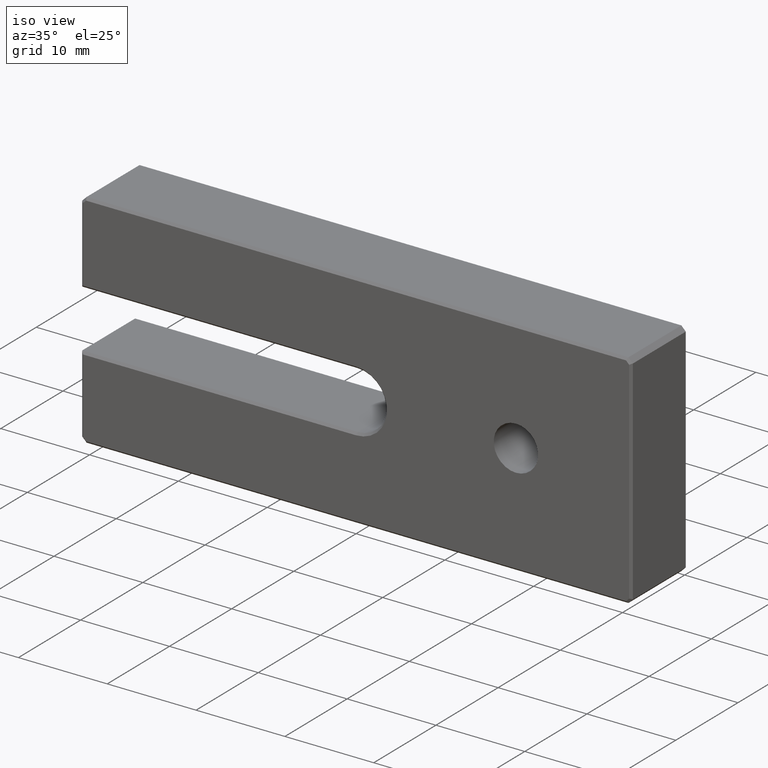
[diagram: clean part render]
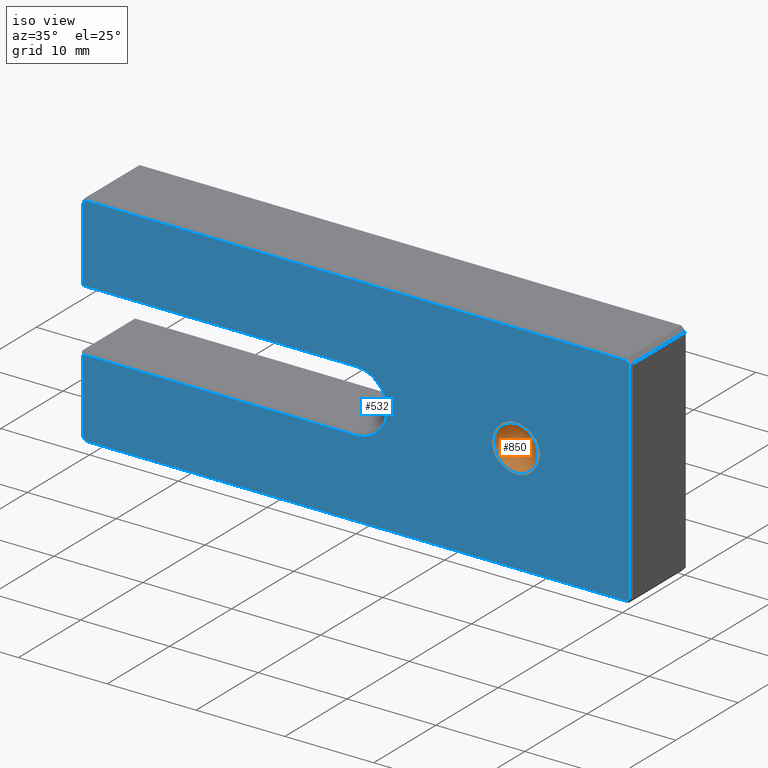
[diagram: same view with the hole feature highlighted: cylindrical wall and planar end face, labeled with their STEP entity ids]
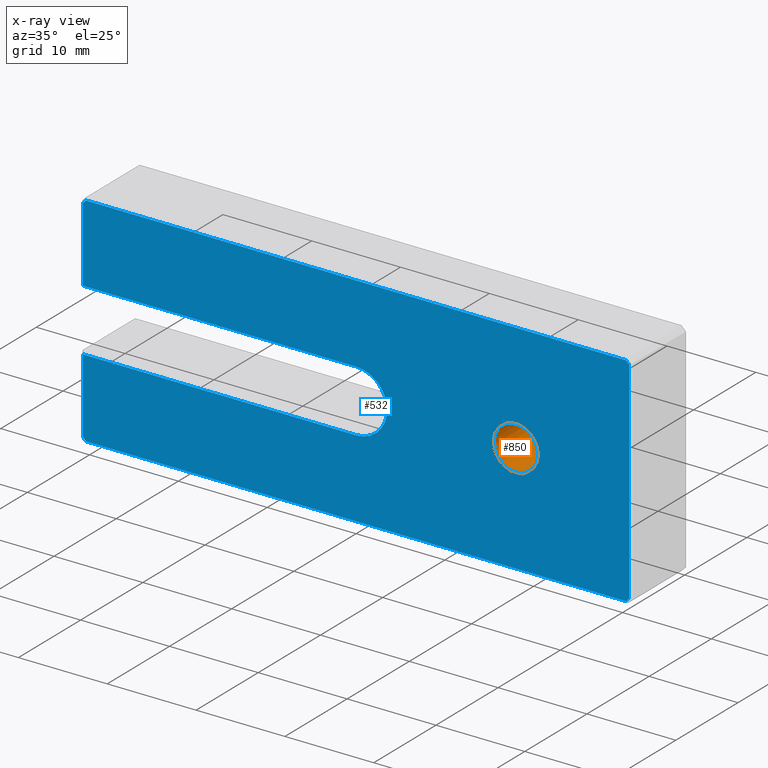
[diagram: x-ray of the same camera — body ghosted, the hole faces saturated]
A machine part, iso view. The highlighted faces form one hole feature of diameter 5 mm: the cylindrical wall (entity #850, orange) and its adjacent planar end face (entity #532, blue) — they share a circular edge in the B-rep.
The next image is the same camera in x-ray (body ghosted, the hole faces saturated) — the bore reads through the body.
Wall:
#25 = DIRECTION ( 'NONE',  ( -0.000000000000000000, 1.000000000000000000, -0.000000000000000000 ) ) ;
#105 = DIRECTION ( 'NONE',  ( 0.000000000000000000, 0.000000000000000000, 1.000000000000000000 ) ) ;
#139 = CIRCLE ( 'NONE', #1030, 2.499999999999998668 ) ;
#161 = FACE_OUTER_BOUND ( 'NONE', #501, .T. ) ;
#162 = EDGE_CURVE ( 'NONE', #374, #374, #139, .T. ) ;
#202 = AXIS2_PLACEMENT_3D ( 'NONE', #503, #325, #593 ) ;
#213 = CARTESIAN_POINT ( 'NONE',  ( 17.99999999999999645, 8.474999999999999645, 0.000000000000000000 ) ) ;
#282 = ORIENTED_EDGE ( 'NONE', *, *, #162, .F. ) ;
#292 = DIRECTION ( 'NONE',  ( -0.000000000000000000, 1.000000000000000000, -0.000000000000000000 ) ) ;
#325 = DIRECTION ( 'NONE',  ( -0.000000000000000000, 1.000000000000000000, -0.000000000000000000 ) ) ;
#374 = VERTEX_POINT ( 'NONE', #1074 ) ;
#501 = EDGE_LOOP ( 'NONE', ( #282 ) ) ;
#503 = CARTESIAN_POINT ( 'NONE',  ( 17.99999999999999645, 9.000000000000000000, 0.000000000000000000 ) ) ;
#543 = VERTEX_POINT ( 'NONE', #1095 ) ;
#593 = DIRECTION ( 'NONE',  ( 0.000000000000000000, 0.000000000000000000, 1.000000000000000000 ) ) ;
#608 = CARTESIAN_POINT ( 'NONE',  ( 17.99999999999999645, 0.000000000000000000, 0.000000000000000000 ) ) ;
#724 = CIRCLE ( 'NONE', #929, 2.499999999999998668 ) ;
#757 = EDGE_LOOP ( 'NONE', ( #813 ) ) ;
#813 = ORIENTED_EDGE ( 'NONE', *, *, #1133, .T. ) ;
#818 = DIRECTION ( 'NONE',  ( 0.000000000000000000, 0.000000000000000000, 1.000000000000000000 ) ) ;
#850 = ADVANCED_FACE ( 'NONE', ( #161, #860 ), #932, .F. ) ;
#860 = FACE_OUTER_BOUND ( 'NONE', #757, .T. ) ;
#929 = AXIS2_PLACEMENT_3D ( 'NONE', #213, #25, #818 ) ;
#932 = CYLINDRICAL_SURFACE ( 'NONE', #202, 2.499999999999998668 ) ;
#1030 = AXIS2_PLACEMENT_3D ( 'NONE', #608, #292, #105 ) ;
#1074 = CARTESIAN_POINT ( 'NONE',  ( 17.99999999999999645, 0.000000000000000000, 2.499999999999998668 ) ) ;
#1095 = CARTESIAN_POINT ( 'NONE',  ( 17.99999999999999645, 8.474999999999999645, 2.499999999999998668 ) ) ;
#1133 = EDGE_CURVE ( 'NONE', #543, #543, #724, .T. ) ;
End face:
#1 = DIRECTION ( 'NONE',  ( 0.000000000000000000, -0.000000000000000000, 1.000000000000000000 ) ) ;
#4 = LINE ( 'NONE', #271, #256 ) ;
#45 = CARTESIAN_POINT ( 'NONE',  ( -30.39644660940672338, 0.000000000000000000, 12.25000000000000178 ) ) ;
#55 = LINE ( 'NONE', #402, #534 ) ;
#64 = ORIENTED_EDGE ( 'NONE', *, *, #207, .T. ) ;
#94 = DIRECTION ( 'NONE',  ( -1.000000000000000000, 0.000000000000000000, 0.000000000000000000 ) ) ;
#105 = DIRECTION ( 'NONE',  ( 0.000000000000000000, 0.000000000000000000, 1.000000000000000000 ) ) ;
#139 = CIRCLE ( 'NONE', #1030, 2.499999999999998668 ) ;
#153 = CARTESIAN_POINT ( 'NONE',  ( -30.75000000000000711, 0.000000000000000000, 4.267419750902946241E-15 ) ) ;
#162 = EDGE_CURVE ( 'NONE', #374, #374, #139, .T. ) ;
#163 = CARTESIAN_POINT ( 'NONE',  ( -30.75000000000000711, 0.000000000000000000, -3.499999999999998224 ) ) ;
#173 = ORIENTED_EDGE ( 'NONE', *, *, #366, .T. ) ;
#177 = AXIS2_PLACEMENT_3D ( 'NONE', #364, #528, #1 ) ;
#178 = ORIENTED_EDGE ( 'NONE', *, *, #162, .T. ) ;
#191 = FACE_BOUND ( 'NONE', #369, .T. ) ;
#199 = CARTESIAN_POINT ( 'NONE',  ( 0.000000000000000000, 0.000000000000000000, 0.000000000000000000 ) ) ;
#207 = EDGE_CURVE ( 'NONE', #634, #652, #874, .T. ) ;
#212 = ORIENTED_EDGE ( 'NONE', *, *, #721, .T. ) ;
#214 = VECTOR ( 'NONE', #569, 999.9999999999998863 ) ;
#215 = VERTEX_POINT ( 'NONE', #701 ) ;
#226 = EDGE_LOOP ( 'NONE', ( #392, #173, #1076, #242, #713, #295, #64, #212, #1069, #381, #767, #305 ) ) ;
#242 = ORIENTED_EDGE ( 'NONE', *, *, #1085, .T. ) ;
#248 = VECTOR ( 'NONE', #754, 1000.000000000000000 ) ;
#256 = VECTOR ( 'NONE', #260, 1000.000000000000114 ) ;
#260 = DIRECTION ( 'NONE',  ( 0.7071067811865474617, 0.000000000000000000, 0.7071067811865474617 ) ) ;
#271 = CARTESIAN_POINT ( 'NONE',  ( 30.82322330470335814, 0.000000000000000000, -11.82322330470336702 ) ) ;
#279 = DIRECTION ( 'NONE',  ( 0.000000000000000000, 0.000000000000000000, 1.000000000000000000 ) ) ;
#287 = VERTEX_POINT ( 'NONE', #638 ) ;
#292 = DIRECTION ( 'NONE',  ( -0.000000000000000000, 1.000000000000000000, -0.000000000000000000 ) ) ;
#295 = ORIENTED_EDGE ( 'NONE', *, *, #418, .T. ) ;
#297 = CARTESIAN_POINT ( 'NONE',  ( -30.82322330470336524, 0.000000000000000000, 11.82322330470336347 ) ) ;
#298 = DIRECTION ( 'NONE',  ( 0.7071067811865524577, 0.000000000000000000, -0.7071067811865426878 ) ) ;
#305 = ORIENTED_EDGE ( 'NONE', *, *, #507, .T. ) ;
#314 = LINE ( 'NONE', #1078, #1079 ) ;
#324 = VECTOR ( 'NONE', #1026, 1000.000000000000000 ) ;
#338 = LINE ( 'NONE', #843, #248 ) ;
#363 = DIRECTION ( 'NONE',  ( 1.000000000000000000, 0.000000000000000000, -5.595882180570342961E-17 ) ) ;
#364 = CARTESIAN_POINT ( 'NONE',  ( 0.000000000000000000, 0.000000000000000000, 0.000000000000000000 ) ) ;
#366 = EDGE_CURVE ( 'NONE', #773, #812, #55, .T. ) ;
#368 = CARTESIAN_POINT ( 'NONE',  ( 30.39644660940672338, 0.000000000000000000, -12.24999999999999822 ) ) ;
#369 = EDGE_LOOP ( 'NONE', ( #178 ) ) ;
#374 = VERTEX_POINT ( 'NONE', #1074 ) ;
#376 = CARTESIAN_POINT ( 'NONE',  ( -30.75000000000000711, 0.000000000000000000, -11.89644660940673049 ) ) ;
#381 = ORIENTED_EDGE ( 'NONE', *, *, #1060, .T. ) ;
#392 = ORIENTED_EDGE ( 'NONE', *, *, #800, .T. ) ;
#402 = CARTESIAN_POINT ( 'NONE',  ( -30.32322330470336880, 0.000000000000000000, -12.32322330470336169 ) ) ;
#418 = EDGE_CURVE ( 'NONE', #734, #634, #338, .T. ) ;
#419 = DIRECTION ( 'NONE',  ( -1.000000000000000000, 0.000000000000000000, 5.595882180570342961E-17 ) ) ;
#453 = VECTOR ( 'NONE', #977, 1000.000000000000000 ) ;
#454 = CARTESIAN_POINT ( 'NONE',  ( 0.000000000000000000, 0.000000000000000000, 12.25000000000000178 ) ) ;
#456 = VERTEX_POINT ( 'NONE', #1119 ) ;
#490 = VERTEX_POINT ( 'NONE', #163 ) ;
#507 = EDGE_CURVE ( 'NONE', #287, #490, #1130, .T. ) ;
#508 = DIRECTION ( 'NONE',  ( -1.387778780781445676E-16, 0.000000000000000000, -1.000000000000000000 ) ) ;
#514 = EDGE_CURVE ( 'NONE', #215, #659, #1124, .T. ) ;
#528 = DIRECTION ( 'NONE',  ( 0.000000000000000000, 1.000000000000000000, 0.000000000000000000 ) ) ;
#532 = ADVANCED_FACE ( 'NONE', ( #191, #1070 ), #1058, .F. ) ;
#534 = VECTOR ( 'NONE', #298, 1000.000000000000000 ) ;
#541 = VECTOR ( 'NONE', #508, 1000.000000000000000 ) ;
#553 = AXIS2_PLACEMENT_3D ( 'NONE', #199, #961, #279 ) ;
#569 = DIRECTION ( 'NONE',  ( -0.7071067811865525687, 0.000000000000000000, -0.7071067811865425767 ) ) ;
#575 = CARTESIAN_POINT ( 'NONE',  ( -30.39644660940673404, 0.000000000000000000, -12.24999999999999822 ) ) ;
#585 = EDGE_CURVE ( 'NONE', #456, #287, #953, .T. ) ;
#587 = VERTEX_POINT ( 'NONE', #786 ) ;
#608 = CARTESIAN_POINT ( 'NONE',  ( 17.99999999999999645, 0.000000000000000000, 0.000000000000000000 ) ) ;
#616 = CARTESIAN_POINT ( 'NONE',  ( 30.39644660940671628, 0.000000000000000000, 12.25000000000000178 ) ) ;
#634 = VERTEX_POINT ( 'NONE', #616 ) ;
#638 = CARTESIAN_POINT ( 'NONE',  ( -1.398970545142586973E-17, 0.000000000000000000, -3.500000000000000000 ) ) ;
#652 = VERTEX_POINT ( 'NONE', #45 ) ;
#655 = DIRECTION ( 'NONE',  ( 1.387778780781445676E-16, 0.000000000000000000, 1.000000000000000000 ) ) ;
#659 = VERTEX_POINT ( 'NONE', #814 ) ;
#685 = VECTOR ( 'NONE', #363, 1000.000000000000000 ) ;
#701 = CARTESIAN_POINT ( 'NONE',  ( -30.75000000000000711, 0.000000000000000000, 11.89644660940672516 ) ) ;
#713 = ORIENTED_EDGE ( 'NONE', *, *, #790, .T. ) ;
#720 = LINE ( 'NONE', #740, #453 ) ;
#721 = EDGE_CURVE ( 'NONE', #652, #215, #991, .T. ) ;
#734 = VERTEX_POINT ( 'NONE', #918 ) ;
#740 = CARTESIAN_POINT ( 'NONE',  ( 0.000000000000000000, 0.000000000000000000, -12.24999999999999822 ) ) ;
#747 = CARTESIAN_POINT ( 'NONE',  ( -30.75000000000000711, 0.000000000000000000, 4.267419750902946241E-15 ) ) ;
#754 = DIRECTION ( 'NONE',  ( -0.7071067811865524577, 0.000000000000000000, 0.7071067811865426878 ) ) ;
#767 = ORIENTED_EDGE ( 'NONE', *, *, #585, .T. ) ;
#773 = VERTEX_POINT ( 'NONE', #376 ) ;
#784 = CARTESIAN_POINT ( 'NONE',  ( 1.958558763199620221E-16, 0.000000000000000000, 3.500000000000000000 ) ) ;
#786 = CARTESIAN_POINT ( 'NONE',  ( 30.74999999999998934, 0.000000000000000000, -11.89644660940673404 ) ) ;
#790 = EDGE_CURVE ( 'NONE', #587, #734, #314, .T. ) ;
#800 = EDGE_CURVE ( 'NONE', #490, #773, #832, .T. ) ;
#812 = VERTEX_POINT ( 'NONE', #575 ) ;
#814 = CARTESIAN_POINT ( 'NONE',  ( -30.75000000000000711, 0.000000000000000000, 3.500000000000001776 ) ) ;
#832 = LINE ( 'NONE', #747, #541 ) ;
#843 = CARTESIAN_POINT ( 'NONE',  ( 30.32322330470335459, 0.000000000000000000, 12.32322330470336347 ) ) ;
#867 = CARTESIAN_POINT ( 'NONE',  ( -1.958558763199620221E-16, 0.000000000000000000, -3.500000000000000000 ) ) ;
#871 = LINE ( 'NONE', #784, #685 ) ;
#874 = LINE ( 'NONE', #454, #924 ) ;
#901 = VECTOR ( 'NONE', #419, 1000.000000000000000 ) ;
#918 = CARTESIAN_POINT ( 'NONE',  ( 30.74999999999999289, 0.000000000000000000, 11.89644660940673226 ) ) ;
#924 = VECTOR ( 'NONE', #94, 1000.000000000000000 ) ;
#953 = CIRCLE ( 'NONE', #553, 3.500000000000000000 ) ;
#961 = DIRECTION ( 'NONE',  ( 0.000000000000000000, 1.000000000000000000, 0.000000000000000000 ) ) ;
#977 = DIRECTION ( 'NONE',  ( 1.000000000000000000, 0.000000000000000000, 0.000000000000000000 ) ) ;
#991 = LINE ( 'NONE', #297, #214 ) ;
#1026 = DIRECTION ( 'NONE',  ( -1.387778780781445676E-16, 0.000000000000000000, -1.000000000000000000 ) ) ;
#1030 = AXIS2_PLACEMENT_3D ( 'NONE', #608, #292, #105 ) ;
#1058 = PLANE ( 'NONE',  #177 ) ;
#1060 = EDGE_CURVE ( 'NONE', #659, #456, #871, .T. ) ;
#1069 = ORIENTED_EDGE ( 'NONE', *, *, #514, .T. ) ;
#1070 = FACE_OUTER_BOUND ( 'NONE', #226, .T. ) ;
#1074 = CARTESIAN_POINT ( 'NONE',  ( 17.99999999999999645, 0.000000000000000000, 2.499999999999998668 ) ) ;
#1076 = ORIENTED_EDGE ( 'NONE', *, *, #1126, .T. ) ;
#1078 = CARTESIAN_POINT ( 'NONE',  ( 30.74999999999999289, 0.000000000000000000, -4.267419750902944663E-15 ) ) ;
#1079 = VECTOR ( 'NONE', #655, 1000.000000000000000 ) ;
#1085 = EDGE_CURVE ( 'NONE', #1103, #587, #4, .T. ) ;
#1103 = VERTEX_POINT ( 'NONE', #368 ) ;
#1119 = CARTESIAN_POINT ( 'NONE',  ( 0.000000000000000000, 0.000000000000000000, 3.500000000000000000 ) ) ;
#1124 = LINE ( 'NONE', #153, #324 ) ;
#1126 = EDGE_CURVE ( 'NONE', #812, #1103, #720, .T. ) ;
#1130 = LINE ( 'NONE', #867, #901 ) ;